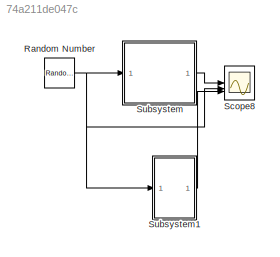
MODEL slx_74a211de047c
KIND model
CONFIG AbsTol = auto
CONFIG EnableMultiTasking = off
CONFIG FixedStep = auto
CONFIG MaxStep = auto
CONFIG MinStep = auto
CONFIG RelTol = 1e-3
CONFIG SampleTimeConstraint = Unconstrained
CONFIG SolverName = VariableStepAuto
CONFIG StartTime = 0.0
CONFIG StopTime = 1
BLOCK [RandomNumber] Random Number
  SampleTime = 0.1
BLOCK [Scope] Scope8
  Floating = off
  NumInputPorts = 3
  ScopeSpecificationString = Simulink.scopes.TimeScopeBlockCfg('CurrentConfiguration', extmgr.ConfigurationSet(extmgr.Configuration('Core','General UI',true),extmgr.Configuration('Core','Source UI',true),extmgr.Configuration('Sources','WiredSimulink',true,'DataLoggingVariableName','ScopeData3'),extmgr.Configuration('Visuals','Time Domain',true,'SerializedDisplays',{struct('MinYLimReal','0.97938','MaxYLimReal','1.18557','YLabe...<+2804ch>
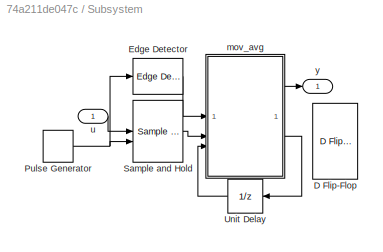
BLOCK [SubSystem] Subsystem
BLOCK [Reference] Subsystem/D Flip-Flop  REF=simulink_extras/Flip Flops/D Flip-Flop
  SourceBlock = simulink_extras/Flip Flops/D Flip-Flop
  SourceType = DFlipFlop
BLOCK [Reference] Subsystem/Edge Detector  REF=spsEdgeDetectorLib/Edge Detector
  LibrarySourceBlock = sps_lib/Control/Edge Detector
  SourceBlock = spsEdgeDetectorLib/Edge Detector
  SourceType = Edge Detector
BLOCK [DiscretePulseGenerator] Subsystem/Pulse Generator
  Period = 1/1e3
  PulseType = Time based
  PulseWidth = 5
BLOCK [Reference] Subsystem/Sample and Hold  REF=spsSampleandHoldLib/Sample and
Hold
  LibrarySourceBlock = sps_lib/Control/Sample and\nHold
  SourceBlock = spsSampleandHoldLib/Sample and\nHold
  SourceType = Sample and Hold
BLOCK [UnitDelay] Subsystem/Unit Delay
  HasFrameUpgradeWarning = on
  SampleTime = -1
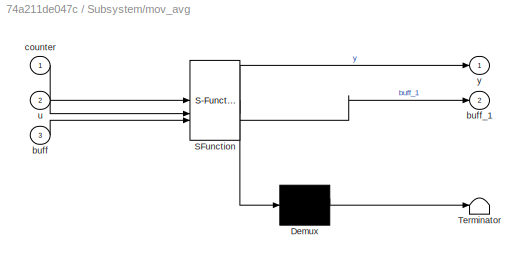
BLOCK [SubSystem] Subsystem/mov_avg
  ErrorFcn = Stateflow.Translate.translate
  LibrarySourceBlock = simulink/User-Defined\nFunctions/MATLAB Function
  PermitHierarchicalResolution = ExplicitOnly
  SFBlockType = MATLAB Function
  TreatAsAtomicUnit = on
BLOCK [Demux] Subsystem/mov_avg/ Demux 
  Outputs = 1
BLOCK [S-Function] Subsystem/mov_avg/ SFunction 
  EnableBusSupport = on
  FunctionName = sf_sfun
  PortCounts = [3 3]
  SFcnIsStateOwnerBlock = off
  SFunctionDeploymentMode = off
  Tag = Stateflow S-Function 3
BLOCK [Terminator] Subsystem/mov_avg/ Terminator 
BLOCK [Inport] Subsystem/mov_avg/buff
  Port = 3
BLOCK [Outport] Subsystem/mov_avg/buff_1
  Port = 2
BLOCK [Inport] Subsystem/mov_avg/counter
BLOCK [Inport] Subsystem/mov_avg/u
  Port = 2
BLOCK [Outport] Subsystem/mov_avg/y
BLOCK [Inport] Subsystem/u
BLOCK [Outport] Subsystem/y
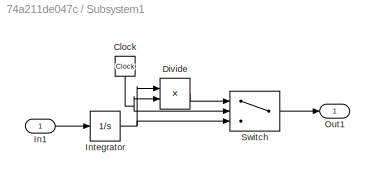
BLOCK [SubSystem] Subsystem1
BLOCK [Clock] Subsystem1/Clock
  NameLocation = left
BLOCK [Product] Subsystem1/Divide
  Inputs = */
  NameLocation = top
BLOCK [Inport] Subsystem1/In1
BLOCK [Integrator] Subsystem1/Integrator
BLOCK [Outport] Subsystem1/Out1
BLOCK [Switch] Subsystem1/Switch
  Criteria = u2 > Threshold
  InputSameDT = off
  SaturateOnIntegerOverflow = off
NET Random Number:1 -> Scope8:2, Subsystem1:1, Subsystem:1
LINE Subsystem/Edge Detector:1 -> Subsystem/mov_avg:1
NET Subsystem/Pulse Generator:1 -> Subsystem/Edge Detector:1, Subsystem/Sample and Hold:2
LINE Subsystem/Sample and Hold:1 -> Subsystem/mov_avg:2
LINE Subsystem/Unit Delay:1 -> Subsystem/mov_avg:3
LINE Subsystem/mov_avg:1 -> Subsystem/y:1
LINE Subsystem/mov_avg:2 -> Subsystem/Unit Delay:1
LINE Subsystem/u:1 -> Subsystem/Sample and Hold:1
NET Subsystem1/Clock:1 -> Subsystem1/Divide:2, Subsystem1/Switch:2
LINE Subsystem1/Divide:1 -> Subsystem1/Switch:1
LINE Subsystem1/In1:1 -> Subsystem1/Integrator:1
NET Subsystem1/Integrator:1 -> Subsystem1/Divide:1, Subsystem1/Switch:3
LINE Subsystem1/Switch:1 -> Subsystem1/Out1:1
LINE Subsystem1:1 -> Scope8:3
LINE Subsystem:1 -> Scope8:1
note: NET lines group one-source signal fan-out (src -> all destinations, sorted); 1:1 wires keep LINE
CHART Subsystem/mov_avg states=1 transitions=1
  STATE_LABEL 'eML_blk_kernel()'
  STATE_LABEL 'SCRIPT:\nfunction [y,buff_1] = fcn(counter, u, buff)\n    if counter\n        for i = 1:9\n            buff(i+1) = buff(i);\n        end\n        buff(1) = u;\n        y = sum(buff)/10;\n    else\n        y = sum(buff)/10;\n    end\nbuff_1 = buff;\nend'
CHART  states=0 transitions=0
